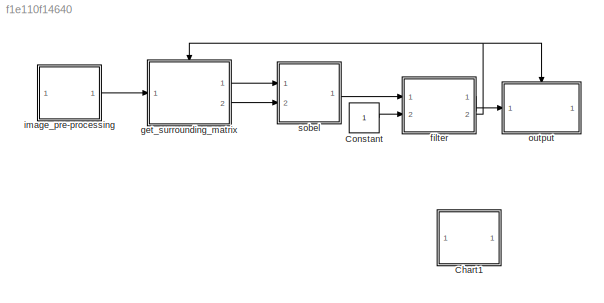
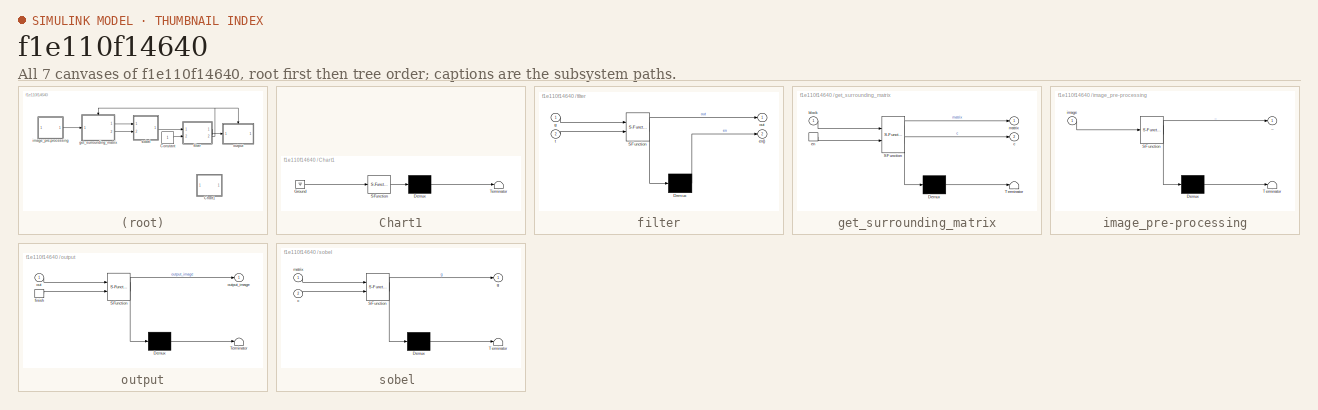
[diagram: thumbnail index - all 7 canvases of the model, root first then tree order]
MODEL slx_f1e110f14640
KIND model
BLOCK [SubSystem] Chart1
  ErrorFcn = Stateflow.Translate.translate
  FunctionWithSeparateData = off
  MaskHideContents = off
  MinAlgLoopOccurrences = off
  Opaque = off
  PermitHierarchicalResolution = ExplicitOnly
  Ports = []
  PropExecContextOutsideSubsystem = off
  RTWSystemCode = Auto
  RequestExecContextInheritance = off
  SFBlockType = Chart
  TreatAsAtomicUnit = on
BLOCK [Demux] Chart1/ Demux 
  Outputs = 1
  Ports = [1, 1]
BLOCK [Ground] Chart1/ Ground 
BLOCK [S-Function] Chart1/ SFunction 
  EnableBusSupport = off
  FunctionName = sf_sfun
  PortCounts = [1 1]
  Ports = [1, 1]
  Tag = Stateflow S-Function milestone2 6
BLOCK [Terminator] Chart1/ Terminator 
BLOCK [Constant] Constant
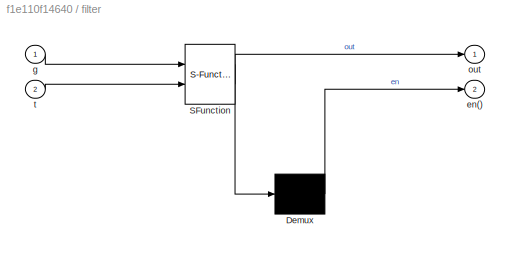
BLOCK [SubSystem] filter
  ErrorFcn = Stateflow.Translate.translate
  FunctionWithSeparateData = off
  MaskHideContents = off
  MinAlgLoopOccurrences = off
  Opaque = off
  PermitHierarchicalResolution = ExplicitOnly
  Ports = [2, 2]
  PropExecContextOutsideSubsystem = off
  RTWSystemCode = Auto
  RequestExecContextInheritance = off
  SFBlockType = Chart
  TreatAsAtomicUnit = on
BLOCK [Demux] filter/ Demux 
  Outputs = 1
  Ports = [1, 1]
BLOCK [S-Function] filter/ SFunction 
  EnableBusSupport = off
  FunctionName = sf_sfun
  PortCounts = [2 2]
  Ports = [2, 2]
  Tag = Stateflow S-Function milestone2 4
BLOCK [Outport] filter/en()
  IconDisplay = Port number
  Port = 2
BLOCK [Inport] filter/g
  IconDisplay = Port number
BLOCK [Outport] filter/out
  IconDisplay = Port number
BLOCK [Inport] filter/t
  IconDisplay = Port number
  Port = 2
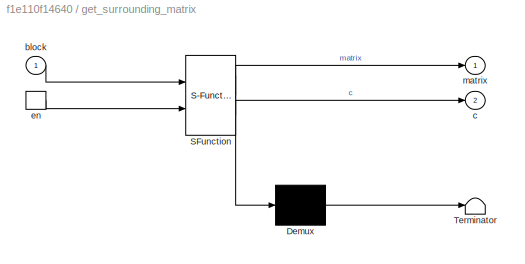
BLOCK [SubSystem] get_surrounding_matrix
  ErrorFcn = Stateflow.Translate.translate
  FunctionWithSeparateData = off
  MaskHideContents = off
  MinAlgLoopOccurrences = off
  Opaque = off
  PermitHierarchicalResolution = ExplicitOnly
  Ports = [1, 2, 0, 1]
  PropExecContextOutsideSubsystem = off
  RTWSystemCode = Auto
  RequestExecContextInheritance = off
  SFBlockType = Chart
  TreatAsAtomicUnit = on
BLOCK [Demux] get_surrounding_matrix/ Demux 
  Outputs = 1
  Ports = [1, 1]
BLOCK [S-Function] get_surrounding_matrix/ SFunction 
  EnableBusSupport = off
  FunctionName = sf_sfun
  PortCounts = [2 3]
  Ports = [2, 3]
  Tag = Stateflow S-Function milestone2 2
BLOCK [Terminator] get_surrounding_matrix/ Terminator 
BLOCK [Inport] get_surrounding_matrix/block
  IconDisplay = Port number
BLOCK [Outport] get_surrounding_matrix/c
  IconDisplay = Port number
  Port = 2
BLOCK [TriggerPort] get_surrounding_matrix/en
  Ports = [0, 1]
  ShowOutputPort = on
  StatesWhenEnabling = held
BLOCK [Outport] get_surrounding_matrix/matrix
  IconDisplay = Port number
BLOCK [SubSystem] image_pre-processing
  ErrorFcn = Stateflow.Translate.translate
  FunctionWithSeparateData = off
  MaskHideContents = off
  MinAlgLoopOccurrences = off
  Opaque = off
  PermitHierarchicalResolution = ExplicitOnly
  Ports = [1, 1]
  PropExecContextOutsideSubsystem = off
  RTWSystemCode = Auto
  RequestExecContextInheritance = off
  SFBlockType = Chart
  TreatAsAtomicUnit = on
BLOCK [Demux] image_pre-processing/ Demux 
  Outputs = 1
  Ports = [1, 1]
BLOCK [S-Function] image_pre-processing/ SFunction 
  EnableBusSupport = off
  FunctionName = sf_sfun
  PortCounts = [1 2]
  Ports = [1, 2]
  Tag = Stateflow S-Function milestone2 1
BLOCK [Terminator] image_pre-processing/ Terminator 
BLOCK [Outport] image_pre-processing/_
  IconDisplay = Port number
BLOCK [Inport] image_pre-processing/image
  IconDisplay = Port number
BLOCK [SubSystem] output
  ErrorFcn = Stateflow.Translate.translate
  FunctionWithSeparateData = off
  MaskHideContents = off
  MinAlgLoopOccurrences = off
  Opaque = off
  PermitHierarchicalResolution = ExplicitOnly
  Ports = [1, 1, 0, 1]
  PropExecContextOutsideSubsystem = off
  RTWSystemCode = Auto
  RequestExecContextInheritance = off
  SFBlockType = Chart
  TreatAsAtomicUnit = on
BLOCK [Demux] output/ Demux 
  Outputs = 1
  Ports = [1, 1]
BLOCK [S-Function] output/ SFunction 
  EnableBusSupport = off
  FunctionName = sf_sfun
  PortCounts = [2 2]
  Ports = [2, 2]
  Tag = Stateflow S-Function milestone2 5
BLOCK [Terminator] output/ Terminator 
BLOCK [TriggerPort] output/finish
  Ports = [0, 1]
  ShowOutputPort = on
  StatesWhenEnabling = held
BLOCK [Inport] output/out
  IconDisplay = Port number
BLOCK [Outport] output/output_image
  IconDisplay = Port number
BLOCK [SubSystem] sobel 
  ErrorFcn = Stateflow.Translate.translate
  FunctionWithSeparateData = off
  MaskHideContents = off
  MinAlgLoopOccurrences = off
  Opaque = off
  PermitHierarchicalResolution = ExplicitOnly
  Ports = [2, 1]
  PropExecContextOutsideSubsystem = off
  RTWSystemCode = Auto
  RequestExecContextInheritance = off
  SFBlockType = Chart
  TreatAsAtomicUnit = on
BLOCK [Demux] sobel / Demux 
  Outputs = 1
  Ports = [1, 1]
BLOCK [S-Function] sobel / SFunction 
  EnableBusSupport = off
  FunctionName = sf_sfun
  PortCounts = [2 2]
  Ports = [2, 2]
  Tag = Stateflow S-Function milestone2 3
BLOCK [Terminator] sobel / Terminator 
BLOCK [Inport] sobel /c
  IconDisplay = Port number
  Port = 2
BLOCK [Outport] sobel /g
  IconDisplay = Port number
BLOCK [Inport] sobel /matrix
  IconDisplay = Port number
LINE Constant:1 -> filter:2
LINE filter:1 -> output:1
NET filter:2 -> get_surrounding_matrix:trigger, output:trigger
LINE get_surrounding_matrix:1 -> sobel :1
LINE get_surrounding_matrix:2 -> sobel :2
LINE image_pre-processing:1 -> get_surrounding_matrix:1
LINE sobel :1 -> filter:1
note: NET lines group one-source signal fan-out (src -> all destinations, sorted); 1:1 wires keep LINE
